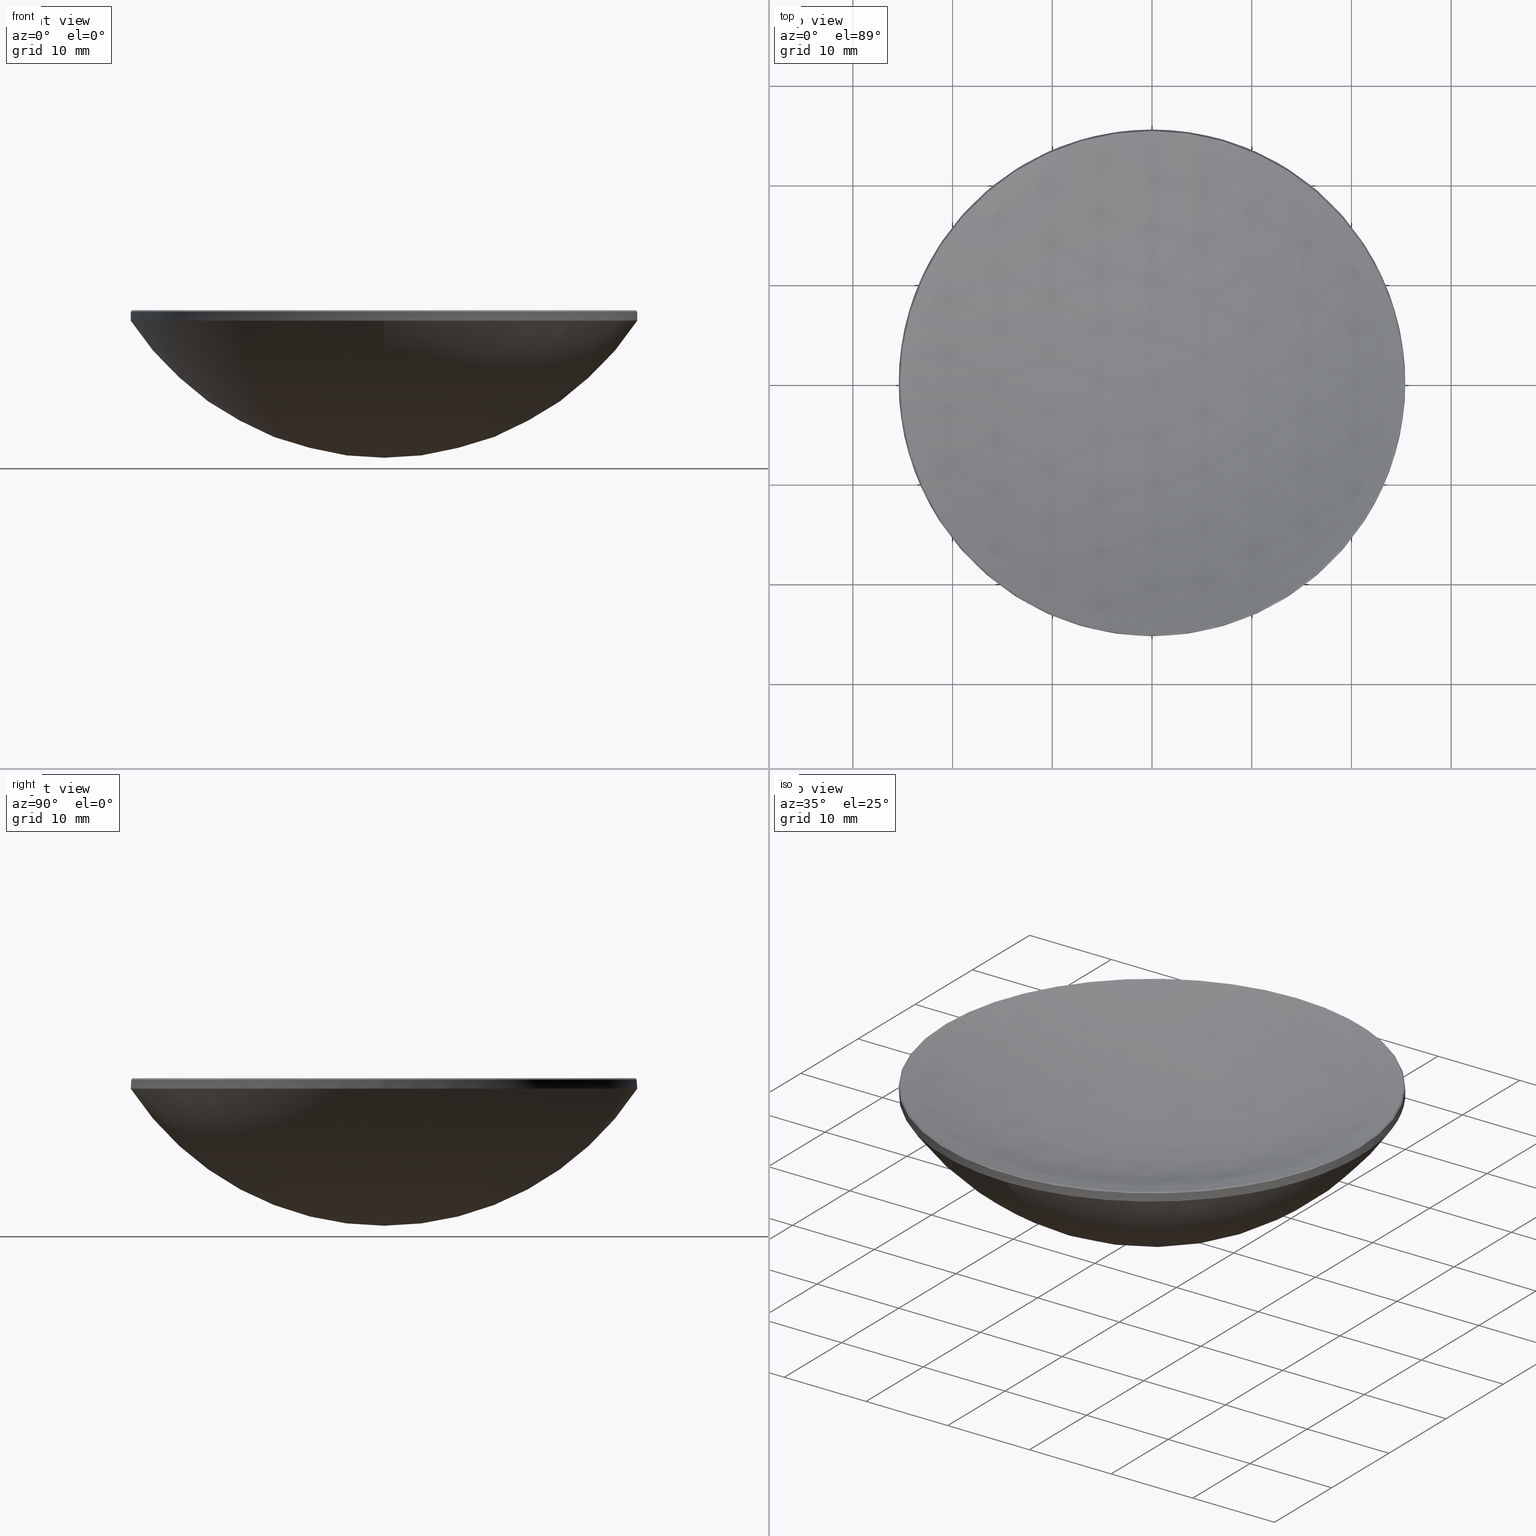
[diagram: canonical four-view strip — front | top / right | iso, engineering-drawing reading convention]
A machine part, canonical four-view strip (front | top / right | iso — engineering-drawing reading convention). The complete STEP part file that produces these views, byte-faithful:
ISO-10303-21;
HEADER;
FILE_DESCRIPTION (( 'STEP AP214' ),
    '1' );
FILE_NAME ('GLM1-050B-100-VIS.STEP',
    '2024-08-09T02:21:43',
    ( 'Windows User' ),
    ( 'P R C' ),
    'SwSTEP 2.0',
    'SolidWorks 2022',
    '' );
FILE_SCHEMA (( 'AUTOMOTIVE_DESIGN' ));
ENDSEC;

DATA;
#1 = ORIENTED_EDGE ( 'NONE', *, *, #55, .T. ) ;
#2 = PRESENTATION_LAYER_ASSIGNMENT (  '', '', ( #254 ) ) ;
#3 =( NAMED_UNIT ( * ) PLANE_ANGLE_UNIT ( ) SI_UNIT ( $, .RADIAN. ) );
#4 = FILL_AREA_STYLE_COLOUR ( '', #130 ) ;
#5 = CARTESIAN_POINT ( 'NONE',  ( 25.25886542154867342, 3.093318868859334493E-15, 17.04113457845133439 ) ) ;
#6 = CARTESIAN_POINT ( 'NONE',  ( 0.000000000000000000, 1.857789194306534769E-15, 2.253842231382106931 ) ) ;
#7 = APPLICATION_PROTOCOL_DEFINITION ( 'draft international standard', 'automotive_design', 1998, #252 ) ;
#8 = LINE ( 'NONE', #47, #49 ) ;
#9 = DIRECTION ( 'NONE',  ( 1.000000000000000000, 0.000000000000000000, 0.000000000000000000 ) ) ;
#10 = CARTESIAN_POINT ( 'NONE',  ( 0.000000000000000000, 0.000000000000000000, 32.59384223138210501 ) ) ;
#11 = CIRCLE ( 'NONE', #48, 25.39999999999999858 ) ;
#12 = ORIENTED_EDGE ( 'NONE', *, *, #85, .T. ) ;
#13 = EDGE_CURVE ( 'NONE', #182, #95, #75, .T. ) ;
#14 = VERTEX_POINT ( 'NONE', #263 ) ;
#15 = EDGE_CURVE ( 'NONE', #18, #131, #184, .T. ) ;
#16 = DIRECTION ( 'NONE',  ( 0.000000000000000000, 0.000000000000000000, 1.000000000000000000 ) ) ;
#17 = PRESENTATION_STYLE_ASSIGNMENT (( #141 ) ) ;
#18 = VERTEX_POINT ( 'NONE', #219 ) ;
#19 = PRODUCT_DEFINITION_FORMATION_WITH_SPECIFIED_SOURCE ( '�κ�', '', #272, .NOT_KNOWN. ) ;
#20 = DIRECTION ( 'NONE',  ( 1.000000000000000000, 0.000000000000000000, 0.000000000000000000 ) ) ;
#21 = ADVANCED_FACE ( 'NONE', ( #241 ), #46, .T. ) ;
#22 = AXIS2_PLACEMENT_3D ( 'NONE', #24, #178, #247 ) ;
#23 =( GEOMETRIC_REPRESENTATION_CONTEXT ( 3 ) GLOBAL_UNCERTAINTY_ASSIGNED_CONTEXT ( ( #218 ) ) GLOBAL_UNIT_ASSIGNED_CONTEXT ( ( #28, #198, #246 ) ) REPRESENTATION_CONTEXT ( 'NONE', 'WORKASPACE' ) );
#24 = CARTESIAN_POINT ( 'NONE',  ( 0.000000000000000000, 0.000000000000000000, 77.79991762762121255 ) ) ;
#25 = CARTESIAN_POINT ( 'NONE',  ( 0.000000000000000000, 0.000000000000000000, 32.59384223138210501 ) ) ;
#26 = EDGE_CURVE ( 'NONE', #261, #169, #94, .T. ) ;
#27 = CARTESIAN_POINT ( 'NONE',  ( -25.25886542154867342, 0.000000000000000000, 17.04113457845133439 ) ) ;
#28 =( LENGTH_UNIT ( ) NAMED_UNIT ( * ) SI_UNIT ( .MILLI., .METRE. ) );
#29 = DIRECTION ( 'NONE',  ( 1.000000000000000000, 0.000000000000000000, 0.000000000000000000 ) ) ;
#30 = CARTESIAN_POINT ( 'NONE',  ( 0.000000000000000000, 0.000000000000000000, 17.04113457845133439 ) ) ;
#31 = DIRECTION ( 'NONE',  ( 1.000000000000000000, 0.000000000000000000, 0.000000000000000000 ) ) ;
#32 = MANIFOLD_SOLID_BREP ( '����1', #245 ) ;
#33 = AXIS2_PLACEMENT_3D ( 'NONE', #64, #136, #235 ) ;
#34 = VECTOR ( 'NONE', #250, 1000.000000000000114 ) ;
#35 = ORIENTED_EDGE ( 'NONE', *, *, #98, .F. ) ;
#36 = CONICAL_SURFACE ( 'NONE', #70, 25.25886542154867342, 0.7853981633974606025 ) ;
#37 = ORIENTED_EDGE ( 'NONE', *, *, #242, .T. ) ;
#38 = ORIENTED_EDGE ( 'NONE', *, *, #199, .F. ) ;
#39 = ADVANCED_FACE ( 'NONE', ( #196 ), #165, .F. ) ;
#40 = DIRECTION ( 'NONE',  ( -1.000000000000000000, 0.000000000000000000, 0.000000000000000000 ) ) ;
#41 = DIRECTION ( 'NONE',  ( 1.000000000000000000, 0.000000000000000000, 0.000000000000000000 ) ) ;
#42 = SURFACE_STYLE_FILL_AREA ( #61 ) ;
#43 = STYLED_ITEM ( 'NONE', ( #151 ), #68 ) ;
#44 = EDGE_CURVE ( 'NONE', #113, #97, #11, .T. ) ;
#45 = DIRECTION ( 'NONE',  ( 0.000000000000000000, 0.000000000000000000, -1.000000000000000000 ) ) ;
#46 = CYLINDRICAL_SURFACE ( 'NONE', #268, 25.39999999999999858 ) ;
#47 = CARTESIAN_POINT ( 'NONE',  ( -25.39999999999999858, 0.000000000000000000, 20.00000000000000000 ) ) ;
#48 = AXIS2_PLACEMENT_3D ( 'NONE', #104, #259, #82 ) ;
#49 = VECTOR ( 'NONE', #71, 1000.000000000000000 ) ;
#50 = CARTESIAN_POINT ( 'NONE',  ( -3.110602869834276076E-15, -25.39999999999999503, 16.00000000000000000 ) ) ;
#51 = FACE_OUTER_BOUND ( 'NONE', #81, .T. ) ;
#52 = DIRECTION ( 'NONE',  ( 0.000000000000000000, 0.000000000000000000, -1.000000000000000000 ) ) ;
#53 = CARTESIAN_POINT ( 'NONE',  ( 25.25886542154865921, 3.101960869346804496E-15, 17.04113457845134860 ) ) ;
#54 = DIRECTION ( 'NONE',  ( 0.000000000000000000, 1.000000000000000000, 0.000000000000000000 ) ) ;
#55 = EDGE_CURVE ( 'NONE', #113, #210, #140, .T. ) ;
#56 = ORIENTED_EDGE ( 'NONE', *, *, #67, .F. ) ;
#57 = SHAPE_DEFINITION_REPRESENTATION ( #160, #68 ) ;
#58 = CIRCLE ( 'NONE', #215, 25.39999999999999503 ) ;
#59 = ORIENTED_EDGE ( 'NONE', *, *, #199, .T. ) ;
#60 = CARTESIAN_POINT ( 'NONE',  ( 0.000000000000000000, 0.000000000000000000, 20.00000000000000000 ) ) ;
#61 = FILL_AREA_STYLE ('',( #4 ) ) ;
#62 = AXIS2_PLACEMENT_3D ( 'NONE', #237, #116, #41 ) ;
#63 = COLOUR_RGB ( '',1.000000000000000000, 1.000000000000000000, 1.000000000000000000 ) ;
#64 = CARTESIAN_POINT ( 'NONE',  ( 0.000000000000000000, 0.000000000000000000, 17.04113457845134860 ) ) ;
#65 = DIRECTION ( 'NONE',  ( -1.000000000000000000, 1.224646799147353207E-16, 0.000000000000000000 ) ) ;
#66 = CARTESIAN_POINT ( 'NONE',  ( -25.39999999999999858, 0.000000000000000000, 16.90000000000001279 ) ) ;
#67 = EDGE_CURVE ( 'NONE', #115, #18, #155, .T. ) ;
#68 = ADVANCED_BREP_SHAPE_REPRESENTATION ( 'GLM1-050B-100-VIS', ( #32, #197 ), #23 ) ;
#69 = CARTESIAN_POINT ( 'NONE',  ( 0.000000000000000000, 0.000000000000000000, 16.90000000000001279 ) ) ;
#70 = AXIS2_PLACEMENT_3D ( 'NONE', #152, #248, #207 ) ;
#71 = DIRECTION ( 'NONE',  ( -0.000000000000000000, -0.000000000000000000, -1.000000000000000000 ) ) ;
#72 = CARTESIAN_POINT ( 'NONE',  ( 0.000000000000000000, 0.000000000000000000, 17.04113457845134860 ) ) ;
#73 = DIRECTION ( 'NONE',  ( 0.000000000000000000, 0.000000000000000000, -1.000000000000000000 ) ) ;
#74 = CARTESIAN_POINT ( 'NONE',  ( 0.000000000000000000, 0.000000000000000000, 77.79991762762121255 ) ) ;
#75 = CIRCLE ( 'NONE', #279, 30.33999999999999986 ) ;
#76 = ORIENTED_EDGE ( 'NONE', *, *, #55, .F. ) ;
#77 = ORIENTED_EDGE ( 'NONE', *, *, #149, .F. ) ;
#78 = AXIS2_PLACEMENT_3D ( 'NONE', #117, #190, #192 ) ;
#79 = VECTOR ( 'NONE', #103, 1000.000000000000000 ) ;
#80 = ORIENTED_EDGE ( 'NONE', *, *, #229, .F. ) ;
#81 = EDGE_LOOP ( 'NONE', ( #76, #86, #59, #156, #159 ) ) ;
#82 = DIRECTION ( 'NONE',  ( 1.000000000000000000, 0.000000000000000000, 0.000000000000000000 ) ) ;
#83 = CARTESIAN_POINT ( 'NONE',  ( 0.000000000000000000, 0.000000000000000000, 32.59384223138210501 ) ) ;
#84 = EDGE_LOOP ( 'NONE', ( #274, #164, #143, #276 ) ) ;
#85 = EDGE_CURVE ( 'NONE', #209, #113, #251, .T. ) ;
#86 = ORIENTED_EDGE ( 'NONE', *, *, #44, .T. ) ;
#87 = LINE ( 'NONE', #27, #34 ) ;
#88 = DIRECTION ( 'NONE',  ( 1.000000000000000000, 0.000000000000000000, 0.000000000000000000 ) ) ;
#89 = CARTESIAN_POINT ( 'NONE',  ( 0.000000000000000000, 25.39999999999999503, 16.00000000000000000 ) ) ;
#90 = CARTESIAN_POINT ( 'NONE',  ( 0.000000000000000000, 0.000000000000000000, 77.79991762762121255 ) ) ;
#91 = ADVANCED_FACE ( 'NONE', ( #224 ), #109, .F. ) ;
#92 = DIRECTION ( 'NONE',  ( -0.000000000000000000, -0.000000000000000000, 1.000000000000000000 ) ) ;
#93 = FACE_OUTER_BOUND ( 'NONE', #84, .T. ) ;
#94 = CIRCLE ( 'NONE', #62, 25.39999999999999503 ) ;
#95 = VERTEX_POINT ( 'NONE', #89 ) ;
#96 = EDGE_LOOP ( 'NONE', ( #163, #183, #133, #186 ) ) ;
#97 = VERTEX_POINT ( 'NONE', #66 ) ;
#98 = EDGE_CURVE ( 'NONE', #131, #209, #195, .T. ) ;
#99 = ORIENTED_EDGE ( 'NONE', *, *, #260, .T. ) ;
#100 = ORIENTED_EDGE ( 'NONE', *, *, #26, .F. ) ;
#101 = AXIS2_PLACEMENT_3D ( 'NONE', #69, #73, #31 ) ;
#102 = CIRCLE ( 'NONE', #158, 25.25886542154865921 ) ;
#103 = DIRECTION ( 'NONE',  ( -0.000000000000000000, -0.000000000000000000, -1.000000000000000000 ) ) ;
#104 = CARTESIAN_POINT ( 'NONE',  ( 0.000000000000000000, 0.000000000000000000, 16.90000000000001279 ) ) ;
#105 = DIRECTION ( 'NONE',  ( -1.000000000000000000, 0.000000000000000000, 0.000000000000000000 ) ) ;
#106 = DIRECTION ( 'NONE',  ( -1.000000000000000000, 0.000000000000000000, 0.000000000000000000 ) ) ;
#107 = DIRECTION ( 'NONE',  ( -0.000000000000000000, -0.000000000000000000, 1.000000000000000000 ) ) ;
#108 = PRODUCT_DEFINITION ( 'δ֪', '', #19, #118 ) ;
#109 = SPHERICAL_SURFACE ( 'NONE', #121, 65.79999999999999716 ) ;
#110 = DIRECTION ( 'NONE',  ( 0.000000000000000000, 1.000000000000000000, 0.000000000000000000 ) ) ;
#111 = ORIENTED_EDGE ( 'NONE', *, *, #15, .T. ) ;
#112 = EDGE_LOOP ( 'NONE', ( #258, #99, #100, #80 ) ) ;
#113 = VERTEX_POINT ( 'NONE', #203 ) ;
#114 = AXIS2_PLACEMENT_3D ( 'NONE', #30, #52, #128 ) ;
#115 = VERTEX_POINT ( 'NONE', #171 ) ;
#116 = DIRECTION ( 'NONE',  ( -0.000000000000000000, -0.000000000000000000, 1.000000000000000000 ) ) ;
#117 = CARTESIAN_POINT ( 'NONE',  ( 0.000000000000000000, 0.000000000000000000, 77.79991762762121255 ) ) ;
#118 = PRODUCT_DEFINITION_CONTEXT ( 'detailed design', #147, 'design' ) ;
#119 = CARTESIAN_POINT ( 'NONE',  ( 25.39999999999999858, 3.110602869834276865E-15, 20.00000000000000000 ) ) ;
#120 = CARTESIAN_POINT ( 'NONE',  ( 0.000000000000000000, 0.000000000000000000, 16.00000000000000000 ) ) ;
#121 = AXIS2_PLACEMENT_3D ( 'NONE', #74, #205, #110 ) ;
#122 = SURFACE_STYLE_FILL_AREA ( #249 ) ;
#123 = SPHERICAL_SURFACE ( 'NONE', #181, 30.33999999999999986 ) ;
#124 = CARTESIAN_POINT ( 'NONE',  ( 0.000000000000000000, 0.000000000000000000, 20.00000000000000000 ) ) ;
#125 = EDGE_CURVE ( 'NONE', #18, #97, #87, .T. ) ;
#126 = CARTESIAN_POINT ( 'NONE',  ( 0.000000000000000000, 0.000000000000000000, 16.00000000000000000 ) ) ;
#127 = DIRECTION ( 'NONE',  ( 0.000000000000000000, 1.000000000000000000, 0.000000000000000000 ) ) ;
#128 = DIRECTION ( 'NONE',  ( -1.000000000000000000, 0.000000000000000000, 0.000000000000000000 ) ) ;
#129 = ORIENTED_EDGE ( 'NONE', *, *, #277, .F. ) ;
#130 = COLOUR_RGB ( '',1.000000000000000000, 1.000000000000000000, 1.000000000000000000 ) ;
#131 = VERTEX_POINT ( 'NONE', #179 ) ;
#132 = EDGE_CURVE ( 'NONE', #169, #210, #238, .T. ) ;
#133 = ORIENTED_EDGE ( 'NONE', *, *, #98, .T. ) ;
#134 = CIRCLE ( 'NONE', #101, 25.39999999999999858 ) ;
#135 = AXIS2_PLACEMENT_3D ( 'NONE', #124, #202, #226 ) ;
#136 = DIRECTION ( 'NONE',  ( -0.000000000000000000, -0.000000000000000000, 1.000000000000000000 ) ) ;
#137 = PRODUCT_RELATED_PRODUCT_CATEGORY ( 'part', '', ( #272 ) ) ;
#138 = APPLICATION_PROTOCOL_DEFINITION ( 'draft international standard', 'automotive_design', 1998, #147 ) ;
#139 = ORIENTED_EDGE ( 'NONE', *, *, #229, .T. ) ;
#140 = LINE ( 'NONE', #119, #79 ) ;
#141 = SURFACE_STYLE_USAGE ( .BOTH. , #212 ) ;
#142 =( GEOMETRIC_REPRESENTATION_CONTEXT ( 3 ) GLOBAL_UNCERTAINTY_ASSIGNED_CONTEXT ( ( #191 ) ) GLOBAL_UNIT_ASSIGNED_CONTEXT ( ( #225, #3, #264 ) ) REPRESENTATION_CONTEXT ( 'NONE', 'WORKASPACE' ) );
#143 = ORIENTED_EDGE ( 'NONE', *, *, #157, .F. ) ;
#144 = DIRECTION ( 'NONE',  ( 0.000000000000000000, 0.000000000000000000, -1.000000000000000000 ) ) ;
#145 = CARTESIAN_POINT ( 'NONE',  ( 0.000000000000000000, 0.000000000000000000, 16.00000000000000000 ) ) ;
#146 = DIRECTION ( 'NONE',  ( -0.000000000000000000, -0.000000000000000000, 1.000000000000000000 ) ) ;
#147 = APPLICATION_CONTEXT ( 'automotive_design' ) ;
#148 = AXIS2_PLACEMENT_3D ( 'NONE', #267, #107, #200 ) ;
#149 = EDGE_CURVE ( 'NONE', #97, #113, #134, .T. ) ;
#150 = AXIS2_PLACEMENT_3D ( 'NONE', #25, #65, #266 ) ;
#151 = PRESENTATION_STYLE_ASSIGNMENT (( #222 ) ) ;
#152 = CARTESIAN_POINT ( 'NONE',  ( 0.000000000000000000, 0.000000000000000000, 17.04113457845133439 ) ) ;
#153 = DIRECTION ( 'NONE',  ( 1.000000000000000000, 0.000000000000000000, 0.000000000000000000 ) ) ;
#154 = FACE_OUTER_BOUND ( 'NONE', #112, .T. ) ;
#155 = CIRCLE ( 'NONE', #280, 25.25886542154865921 ) ;
#156 = ORIENTED_EDGE ( 'NONE', *, *, #26, .T. ) ;
#157 = EDGE_CURVE ( 'NONE', #210, #95, #58, .T. ) ;
#158 = AXIS2_PLACEMENT_3D ( 'NONE', #72, #146, #88 ) ;
#159 = ORIENTED_EDGE ( 'NONE', *, *, #132, .T. ) ;
#160 = PRODUCT_DEFINITION_SHAPE ( 'NONE', 'NONE',  #108 ) ;
#161 = EDGE_LOOP ( 'NONE', ( #232, #37, #265, #111 ) ) ;
#162 = EDGE_CURVE ( 'NONE', #14, #131, #189, .T. ) ;
#163 = ORIENTED_EDGE ( 'NONE', *, *, #242, .F. ) ;
#164 = ORIENTED_EDGE ( 'NONE', *, *, #13, .T. ) ;
#165 = SPHERICAL_SURFACE ( 'NONE', #78, 65.79999999999999716 ) ;
#166 = UNCERTAINTY_MEASURE_WITH_UNIT (LENGTH_MEASURE( 1.000000000000000082E-05 ), #188, 'distance_accuracy_value', 'NONE');
#167 = EDGE_LOOP ( 'NONE', ( #211, #1, #257, #139, #38 ) ) ;
#168 = MECHANICAL_DESIGN_GEOMETRIC_PRESENTATION_REPRESENTATION (  '', ( #43 ), #142 ) ;
#169 = VERTEX_POINT ( 'NONE', #50 ) ;
#170 = CYLINDRICAL_SURFACE ( 'NONE', #135, 25.39999999999999858 ) ;
#171 = CARTESIAN_POINT ( 'NONE',  ( 0.000000000000000000, 25.25886542154867698, 17.04113457845135216 ) ) ;
#172 = ADVANCED_FACE ( 'NONE', ( #154 ), #123, .T. ) ;
#173 = FILL_AREA_STYLE_COLOUR ( '', #63 ) ;
#174 = SPHERICAL_SURFACE ( 'NONE', #175, 30.33999999999999986 ) ;
#175 = AXIS2_PLACEMENT_3D ( 'NONE', #269, #105, #54 ) ;
#176 = AXIS2_PLACEMENT_3D ( 'NONE', #90, #270, #144 ) ;
#177 = SURFACE_SIDE_STYLE ('',( #122 ) ) ;
#178 = DIRECTION ( 'NONE',  ( -1.000000000000000000, 1.224646799147353207E-16, 0.000000000000000000 ) ) ;
#179 = CARTESIAN_POINT ( 'NONE',  ( -3.093318868859335282E-15, -25.25886542154867698, 17.04113457845135216 ) ) ;
#180 = DIRECTION ( 'NONE',  ( 0.7071067811865561215, 8.659560562355038861E-17, -0.7071067811865388020 ) ) ;
#181 = AXIS2_PLACEMENT_3D ( 'NONE', #10, #106, #127 ) ;
#182 = VERTEX_POINT ( 'NONE', #6 ) ;
#183 = ORIENTED_EDGE ( 'NONE', *, *, #162, .T. ) ;
#184 = CIRCLE ( 'NONE', #33, 25.25886542154865921 ) ;
#185 = CIRCLE ( 'NONE', #150, 30.33999999999999986 ) ;
#186 = ORIENTED_EDGE ( 'NONE', *, *, #277, .T. ) ;
#187 = ORIENTED_EDGE ( 'NONE', *, *, #15, .F. ) ;
#188 =( LENGTH_UNIT ( ) NAMED_UNIT ( * ) SI_UNIT ( .MILLI., .METRE. ) );
#189 = CIRCLE ( 'NONE', #22, 65.79999999999999716 ) ;
#190 = DIRECTION ( 'NONE',  ( -1.000000000000000000, 0.000000000000000000, 0.000000000000000000 ) ) ;
#191 = UNCERTAINTY_MEASURE_WITH_UNIT (LENGTH_MEASURE( 1.000000000000000082E-05 ), #225, 'distance_accuracy_value', 'NONE');
#192 = DIRECTION ( 'NONE',  ( 0.000000000000000000, 1.000000000000000000, 0.000000000000000000 ) ) ;
#193 = ADVANCED_FACE ( 'NONE', ( #93 ), #174, .T. ) ;
#194 = DIRECTION ( 'NONE',  ( 1.000000000000000000, 0.000000000000000000, 0.000000000000000000 ) ) ;
#195 = CIRCLE ( 'NONE', #148, 25.25886542154865921 ) ;
#196 = FACE_OUTER_BOUND ( 'NONE', #96, .T. ) ;
#197 = AXIS2_PLACEMENT_3D ( 'NONE', #239, #16, #20 ) ;
#198 =( NAMED_UNIT ( * ) PLANE_ANGLE_UNIT ( ) SI_UNIT ( $, .RADIAN. ) );
#199 = EDGE_CURVE ( 'NONE', #97, #261, #8, .T. ) ;
#200 = DIRECTION ( 'NONE',  ( 1.000000000000000000, 0.000000000000000000, 0.000000000000000000 ) ) ;
#201 = DIRECTION ( 'NONE',  ( -0.000000000000000000, -0.000000000000000000, 1.000000000000000000 ) ) ;
#202 = DIRECTION ( 'NONE',  ( -0.000000000000000000, -0.000000000000000000, -1.000000000000000000 ) ) ;
#203 = CARTESIAN_POINT ( 'NONE',  ( 25.39999999999999858, 3.110602869834276865E-15, 16.90000000000001279 ) ) ;
#204 = PRESENTATION_LAYER_ASSIGNMENT (  '', '', ( #43 ) ) ;
#205 = DIRECTION ( 'NONE',  ( -1.000000000000000000, 0.000000000000000000, 0.000000000000000000 ) ) ;
#206 = ADVANCED_FACE ( 'NONE', ( #228 ), #262, .T. ) ;
#207 = DIRECTION ( 'NONE',  ( -1.000000000000000000, 0.000000000000000000, 0.000000000000000000 ) ) ;
#208 = ORIENTED_EDGE ( 'NONE', *, *, #44, .F. ) ;
#209 = VERTEX_POINT ( 'NONE', #53 ) ;
#210 = VERTEX_POINT ( 'NONE', #230 ) ;
#211 = ORIENTED_EDGE ( 'NONE', *, *, #149, .T. ) ;
#212 = SURFACE_SIDE_STYLE ('',( #42 ) ) ;
#213 = DIRECTION ( 'NONE',  ( 1.000000000000000000, -0.000000000000000000, 0.000000000000000000 ) ) ;
#214 =( GEOMETRIC_REPRESENTATION_CONTEXT ( 3 ) GLOBAL_UNCERTAINTY_ASSIGNED_CONTEXT ( ( #166 ) ) GLOBAL_UNIT_ASSIGNED_CONTEXT ( ( #188, #240, #220 ) ) REPRESENTATION_CONTEXT ( 'NONE', 'WORKASPACE' ) );
#215 = AXIS2_PLACEMENT_3D ( 'NONE', #120, #92, #153 ) ;
#216 = CIRCLE ( 'NONE', #231, 25.39999999999999503 ) ;
#217 = CARTESIAN_POINT ( 'NONE',  ( 0.000000000000000000, 0.000000000000000000, 17.04113457845134860 ) ) ;
#218 = UNCERTAINTY_MEASURE_WITH_UNIT (LENGTH_MEASURE( 1.000000000000000082E-05 ), #28, 'distance_accuracy_value', 'NONE');
#219 = CARTESIAN_POINT ( 'NONE',  ( -25.25886542154865921, 0.000000000000000000, 17.04113457845134860 ) ) ;
#220 =( NAMED_UNIT ( * ) SI_UNIT ( $, .STERADIAN. ) SOLID_ANGLE_UNIT ( ) );
#221 = ADVANCED_FACE ( 'NONE', ( #244 ), #36, .T. ) ;
#222 = SURFACE_STYLE_USAGE ( .BOTH. , #177 ) ;
#223 = VECTOR ( 'NONE', #180, 1000.000000000000114 ) ;
#224 = FACE_OUTER_BOUND ( 'NONE', #161, .T. ) ;
#225 =( LENGTH_UNIT ( ) NAMED_UNIT ( * ) SI_UNIT ( .MILLI., .METRE. ) );
#226 = DIRECTION ( 'NONE',  ( -1.000000000000000000, 0.000000000000000000, 0.000000000000000000 ) ) ;
#227 = DIRECTION ( 'NONE',  ( -0.000000000000000000, -0.000000000000000000, 1.000000000000000000 ) ) ;
#228 = FACE_OUTER_BOUND ( 'NONE', #278, .T. ) ;
#229 = EDGE_CURVE ( 'NONE', #95, #261, #216, .T. ) ;
#230 = CARTESIAN_POINT ( 'NONE',  ( 25.39999999999999503, 3.110602869834276471E-15, 16.00000000000000000 ) ) ;
#231 = AXIS2_PLACEMENT_3D ( 'NONE', #126, #227, #29 ) ;
#232 = ORIENTED_EDGE ( 'NONE', *, *, #162, .F. ) ;
#233 = ORIENTED_EDGE ( 'NONE', *, *, #85, .F. ) ;
#234 = ORIENTED_EDGE ( 'NONE', *, *, #125, .F. ) ;
#235 = DIRECTION ( 'NONE',  ( 1.000000000000000000, 0.000000000000000000, 0.000000000000000000 ) ) ;
#236 = DIRECTION ( 'NONE',  ( -0.000000000000000000, -0.000000000000000000, -1.000000000000000000 ) ) ;
#237 = CARTESIAN_POINT ( 'NONE',  ( 0.000000000000000000, 0.000000000000000000, 16.00000000000000000 ) ) ;
#238 = CIRCLE ( 'NONE', #271, 25.39999999999999503 ) ;
#239 = CARTESIAN_POINT ( 'NONE',  ( 0.000000000000000000, 0.000000000000000000, 0.000000000000000000 ) ) ;
#240 =( NAMED_UNIT ( * ) PLANE_ANGLE_UNIT ( ) SI_UNIT ( $, .RADIAN. ) );
#241 = FACE_OUTER_BOUND ( 'NONE', #167, .T. ) ;
#242 = EDGE_CURVE ( 'NONE', #14, #115, #256, .T. ) ;
#243 = CARTESIAN_POINT ( 'NONE',  ( -25.39999999999999503, 0.000000000000000000, 16.00000000000000000 ) ) ;
#244 = FACE_OUTER_BOUND ( 'NONE', #273, .T. ) ;
#245 = CLOSED_SHELL ( 'NONE', ( #206, #172, #39, #21, #253, #91, #193, #221 ) ) ;
#246 =( NAMED_UNIT ( * ) SI_UNIT ( $, .STERADIAN. ) SOLID_ANGLE_UNIT ( ) );
#247 = DIRECTION ( 'NONE',  ( -1.224646799147353207E-16, -1.000000000000000000, 0.000000000000000000 ) ) ;
#248 = DIRECTION ( 'NONE',  ( 0.000000000000000000, 0.000000000000000000, -1.000000000000000000 ) ) ;
#249 = FILL_AREA_STYLE ('',( #173 ) ) ;
#250 = DIRECTION ( 'NONE',  ( -0.7071067811865561215, 0.000000000000000000, -0.7071067811865388020 ) ) ;
#251 = LINE ( 'NONE', #5, #223 ) ;
#252 = APPLICATION_CONTEXT ( 'automotive_design' ) ;
#253 = ADVANCED_FACE ( 'NONE', ( #51 ), #170, .T. ) ;
#254 = STYLED_ITEM ( 'NONE', ( #17 ), #32 ) ;
#255 = ORIENTED_EDGE ( 'NONE', *, *, #125, .T. ) ;
#256 = CIRCLE ( 'NONE', #176, 65.79999999999999716 ) ;
#257 = ORIENTED_EDGE ( 'NONE', *, *, #157, .T. ) ;
#258 = ORIENTED_EDGE ( 'NONE', *, *, #13, .F. ) ;
#259 = DIRECTION ( 'NONE',  ( 0.000000000000000000, 0.000000000000000000, -1.000000000000000000 ) ) ;
#260 = EDGE_CURVE ( 'NONE', #182, #169, #185, .T. ) ;
#261 = VERTEX_POINT ( 'NONE', #243 ) ;
#262 = CONICAL_SURFACE ( 'NONE', #114, 25.25886542154867342, 0.7853981633974606025 ) ;
#263 = CARTESIAN_POINT ( 'NONE',  ( 0.000000000000000000, 4.029087969194792054E-15, 11.99991762762121716 ) ) ;
#264 =( NAMED_UNIT ( * ) SI_UNIT ( $, .STERADIAN. ) SOLID_ANGLE_UNIT ( ) );
#265 = ORIENTED_EDGE ( 'NONE', *, *, #67, .T. ) ;
#266 = DIRECTION ( 'NONE',  ( -1.224646799147353207E-16, -1.000000000000000000, 0.000000000000000000 ) ) ;
#267 = CARTESIAN_POINT ( 'NONE',  ( 0.000000000000000000, 0.000000000000000000, 17.04113457845134860 ) ) ;
#268 = AXIS2_PLACEMENT_3D ( 'NONE', #60, #236, #40 ) ;
#269 = CARTESIAN_POINT ( 'NONE',  ( 0.000000000000000000, 0.000000000000000000, 32.59384223138210501 ) ) ;
#270 = DIRECTION ( 'NONE',  ( 1.000000000000000000, 0.000000000000000000, 0.000000000000000000 ) ) ;
#271 = AXIS2_PLACEMENT_3D ( 'NONE', #145, #201, #9 ) ;
#272 = PRODUCT ( 'GLM1-050B-100-VIS', 'GLM1-050B-100-VIS', '', ( #281 ) ) ;
#273 = EDGE_LOOP ( 'NONE', ( #233, #35, #187, #255, #208 ) ) ;
#274 = ORIENTED_EDGE ( 'NONE', *, *, #260, .F. ) ;
#275 = MECHANICAL_DESIGN_GEOMETRIC_PRESENTATION_REPRESENTATION (  '', ( #254 ), #214 ) ;
#276 = ORIENTED_EDGE ( 'NONE', *, *, #132, .F. ) ;
#277 = EDGE_CURVE ( 'NONE', #209, #115, #102, .T. ) ;
#278 = EDGE_LOOP ( 'NONE', ( #129, #12, #77, #234, #56 ) ) ;
#279 = AXIS2_PLACEMENT_3D ( 'NONE', #83, #213, #45 ) ;
#280 = AXIS2_PLACEMENT_3D ( 'NONE', #217, #282, #194 ) ;
#281 = PRODUCT_CONTEXT ( 'NONE', #252, 'mechanical' ) ;
#282 = DIRECTION ( 'NONE',  ( -0.000000000000000000, -0.000000000000000000, 1.000000000000000000 ) ) ;
ENDSEC;
END-ISO-10303-21;
